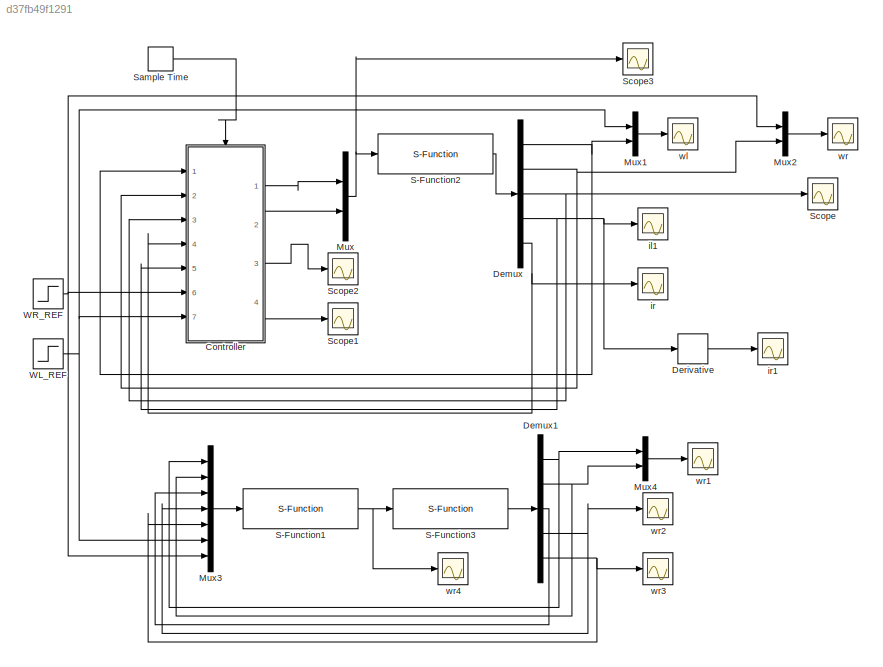
MODEL slx_d37fb49f1291
KIND model
CONFIG AbsTol = auto
CONFIG FixedStep = auto
CONFIG MaxStep = auto
CONFIG MinStep = auto
CONFIG RelTol = 1e-3
CONFIG SampleTimeConstraint = Unconstrained
CONFIG Solver = ode3
CONFIG SolverMode = Auto
CONFIG SolverName = ode3
CONFIG StartTime = 0.0
CONFIG StopTime = 50
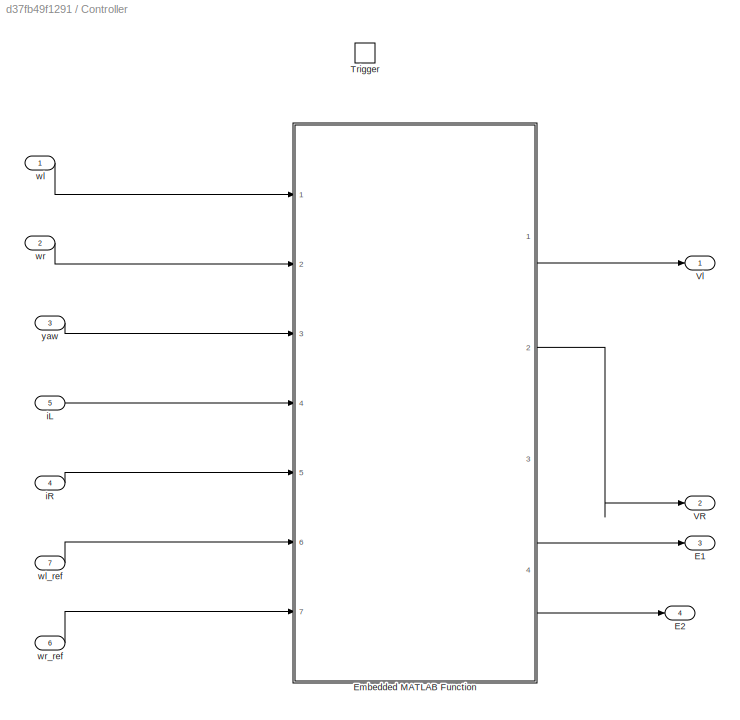
BLOCK [SubSystem] Controller
  Ports = [7, 4, 0, 1]
  RequestExecContextInheritance = off
  Variant = off
BLOCK [Outport] Controller/E1
  IconDisplay = Port number
  Port = 3
BLOCK [Outport] Controller/E2
  IconDisplay = Port number
  Port = 4
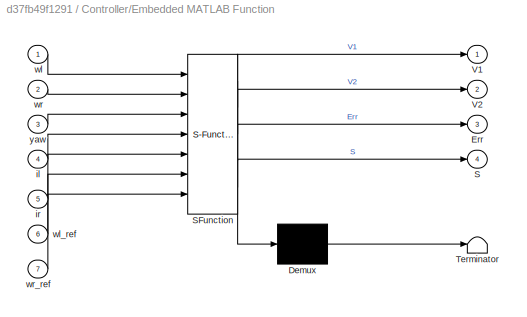
BLOCK [SubSystem] Controller/Embedded MATLAB Function
  ErrorFcn = Stateflow.Translate.translate
  PermitHierarchicalResolution = ParametersOnly
  Ports = [7, 4]
  RequestExecContextInheritance = off
  SFBlockType = MATLAB Function
  TreatAsAtomicUnit = on
  Variant = off
BLOCK [Demux] Controller/Embedded MATLAB Function/ Demux 
  Outputs = 1
  Ports = [1, 1]
BLOCK [S-Function] Controller/Embedded MATLAB Function/ SFunction 
  EnableBusSupport = on
  FunctionName = sf_sfun
  PortCounts = [7 5]
  Ports = [7, 5]
  SFunctionDeploymentMode = off
  Tag = Stateflow S-Function skid_steer_model 2
BLOCK [Terminator] Controller/Embedded MATLAB Function/ Terminator 
BLOCK [Outport] Controller/Embedded MATLAB Function/Err
  IconDisplay = Port number
  Port = 3
BLOCK [Outport] Controller/Embedded MATLAB Function/S
  IconDisplay = Port number
  Port = 4
BLOCK [Outport] Controller/Embedded MATLAB Function/V1
  IconDisplay = Port number
BLOCK [Outport] Controller/Embedded MATLAB Function/V2
  IconDisplay = Port number
  Port = 2
BLOCK [Inport] Controller/Embedded MATLAB Function/il
  IconDisplay = Port number
  Port = 4
BLOCK [Inport] Controller/Embedded MATLAB Function/ir
  IconDisplay = Port number
  Port = 5
BLOCK [Inport] Controller/Embedded MATLAB Function/wl
  IconDisplay = Port number
BLOCK [Inport] Controller/Embedded MATLAB Function/wl_ref
  IconDisplay = Port number
  Port = 6
BLOCK [Inport] Controller/Embedded MATLAB Function/wr
  IconDisplay = Port number
  Port = 2
BLOCK [Inport] Controller/Embedded MATLAB Function/wr_ref
  IconDisplay = Port number
  Port = 7
BLOCK [Inport] Controller/Embedded MATLAB Function/yaw
  IconDisplay = Port number
  Port = 3
BLOCK [TriggerPort] Controller/Trigger
  Ports = []
  StatesWhenEnabling = held
BLOCK [Outport] Controller/VR
  IconDisplay = Port number
  Port = 2
BLOCK [Outport] Controller/Vl
  IconDisplay = Port number
BLOCK [Inport] Controller/iL
  IconDisplay = Port number
  Port = 5
BLOCK [Inport] Controller/iR
  IconDisplay = Port number
  Port = 4
BLOCK [Inport] Controller/wl
  IconDisplay = Port number
BLOCK [Inport] Controller/wl_ref
  IconDisplay = Port number
  Port = 7
BLOCK [Inport] Controller/wr
  IconDisplay = Port number
  Port = 2
BLOCK [Inport] Controller/wr_ref
  IconDisplay = Port number
  Port = 6
BLOCK [Inport] Controller/yaw
  IconDisplay = Port number
  Port = 3
BLOCK [Demux] Demux
  DisplayOption = bar
  Outputs = 5
  Ports = [1, 5]
BLOCK [Demux] Demux1
  DisplayOption = bar
  Outputs = 5
  Ports = [1, 5]
BLOCK [Derivative] Derivative
BLOCK [Mux] Mux
  DisplayOption = bar
  Inputs = 2
  Ports = [2, 1]
BLOCK [Mux] Mux1
  DisplayOption = bar
  Inputs = 2
  Ports = [2, 1]
BLOCK [Mux] Mux2
  DisplayOption = bar
  Inputs = 2
  Ports = [2, 1]
BLOCK [Mux] Mux3
  DisplayOption = bar
  Inputs = 7
  Ports = [7, 1]
BLOCK [Mux] Mux4
  DisplayOption = bar
  Inputs = 2
  Ports = [2, 1]
BLOCK [S-Function] S-Function1
  EnableBusSupport = off
  FunctionName = S_Rover_control
  Ports = [1, 1]
  SFunctionDeploymentMode = off
BLOCK [S-Function] S-Function2
  EnableBusSupport = off
  FunctionName = S_Rover_skid_steer
  Ports = [1, 1]
  SFunctionDeploymentMode = off
BLOCK [S-Function] S-Function3
  EnableBusSupport = off
  FunctionName = S_Rover_skid_steer
  Ports = [1, 1]
  SFunctionDeploymentMode = off
BLOCK [DiscretePulseGenerator] Sample Time
  Period = Ts
  Ports = [0, 1]
  PulseType = Time based
  PulseWidth = 10
  SampleTime = 1e-3
BLOCK [Scope] Scope
  DataFormat = StructureWithTime
  Decimation = 1
  Grid = on
  LimitDataPoints = off
  MaxDataPoints = 5000
  Ports = [1]
  SampleInput = off
  SampleTime = -1
  SaveName = ScopeData
  SaveToWorkspace = off
  ShowLegends = off
  TickLabels = OneTimeTick
  TimeRange = auto
  YMax = 5.54233
  YMin = -0.61679
  ZoomMode = on
BLOCK [Scope] Scope1
  DataFormat = StructureWithTime
  Decimation = 1
  Grid = on
  LimitDataPoints = off
  MaxDataPoints = 5000
  Ports = [1]
  SampleInput = off
  SampleTime = -1
  SaveName = ScopeData4
  SaveToWorkspace = off
  ShowLegends = off
  TickLabels = OneTimeTick
  TimeRange = auto
  YMax = 1.25
  YMin = -1.25
  ZoomMode = on
BLOCK [Scope] Scope2
  DataFormat = StructureWithTime
  Decimation = 1
  Grid = on
  LimitDataPoints = off
  MaxDataPoints = 5000
  Ports = [1]
  SampleInput = off
  SampleTime = -1
  SaveName = ScopeData8
  SaveToWorkspace = off
  ShowLegends = off
  TickLabels = OneTimeTick
  TimeRange = auto
  YMax = 8.70895
  YMin = -3.84725
  ZoomMode = on
BLOCK [Scope] Scope3
  DataFormat = StructureWithTime
  Decimation = 1
  Grid = on
  LimitDataPoints = off
  MaxDataPoints = 5000
  Ports = [1]
  SampleInput = off
  SampleTime = -1
  SaveName = ScopeData3
  SaveToWorkspace = off
  ShowLegends = off
  TickLabels = OneTimeTick
  TimeRange = auto
  YMax = 124.96766
  YMin = -124.70891
  ZoomMode = on
BLOCK [Step] WL_REF
  After = 0.5
  Before = 1
  SampleTime = 0
  Time = 5
BLOCK [Step] WR_REF
  After = 1.5
  Before = 1
  SampleTime = 0
  Time = 30
BLOCK [Scope] il1
  DataFormat = StructureWithTime
  Decimation = 1
  Grid = on
  LimitDataPoints = off
  MaxDataPoints = 5000
  Ports = [1]
  SampleInput = off
  SampleTime = -1
  SaveName = ScopeData5
  SaveToWorkspace = off
  ShowLegends = off
  TickLabels = OneTimeTick
  TimeRange = auto
  YMax = 23.2116
  YMin = -6.35578
  ZoomMode = on
BLOCK [Scope] ir
  DataFormat = StructureWithTime
  Decimation = 1
  Grid = on
  LimitDataPoints = off
  MaxDataPoints = 5000
  Ports = [1]
  SampleInput = off
  SampleTime = -1
  SaveName = ScopeData6
  SaveToWorkspace = off
  ShowLegends = off
  TickLabels = OneTimeTick
  TimeRange = auto
  YMax = 37.14237
  YMin = -6.8481
  ZoomMode = on
BLOCK [Scope] ir1
  DataFormat = StructureWithTime
  Decimation = 1
  Grid = on
  LimitDataPoints = off
  MaxDataPoints = 5000
  Ports = [1]
  SampleInput = off
  SampleTime = -1
  SaveName = ScopeData7
  SaveToWorkspace = off
  ShowLegends = off
  TickLabels = OneTimeTick
  TimeRange = auto
  YMax = 41.49955
  YMin = -34.07938
  ZoomMode = on
BLOCK [Scope] wl
  DataFormat = StructureWithTime
  Decimation = 1
  Grid = on
  LimitDataPoints = off
  MaxDataPoints = 5000
  Ports = [1]
  SampleInput = off
  SampleTime = -1
  SaveName = ScopeData1
  SaveToWorkspace = off
  ShowLegends = off
  TickLabels = OneTimeTick
  TimeRange = auto
  YMax = 1.63682
  YMin = -0.20599
  ZoomMode = on
BLOCK [Scope] wr
  DataFormat = StructureWithTime
  Decimation = 1
  Grid = on
  LimitDataPoints = off
  MaxDataPoints = 5000
  Ports = [1]
  SampleInput = off
  SampleTime = -1
  SaveName = ScopeData2
  SaveToWorkspace = off
  ShowLegends = off
  TickLabels = OneTimeTick
  TimeRange = auto
  YMax = 1.89419
  YMin = -0.271
  ZoomMode = on
BLOCK [Scope] wr1
  DataFormat = StructureWithTime
  Decimation = 1
  Grid = on
  LimitDataPoints = off
  MaxDataPoints = 5000
  Ports = [1]
  SampleInput = off
  SampleTime = -1
  SaveName = ScopeData9
  SaveToWorkspace = off
  ShowLegends = off
  TickLabels = OneTimeTick
  TimeRange = auto
  YMax = 1.77331
  YMin = -0.25547
  ZoomMode = on
BLOCK [Scope] wr2
  DataFormat = StructureWithTime
  Decimation = 1
  Grid = on
  LimitDataPoints = off
  MaxDataPoints = 5000
  Ports = [1]
  SampleInput = off
  SampleTime = -1
  SaveName = ScopeData10
  SaveToWorkspace = off
  ShowLegends = off
  TickLabels = OneTimeTick
  TimeRange = auto
  YMax = 19.47524
  YMin = -45.38843
  ZoomMode = on
BLOCK [Scope] wr3
  DataFormat = StructureWithTime
  Decimation = 1
  Grid = on
  LimitDataPoints = off
  MaxDataPoints = 5000
  Ports = [1]
  SampleInput = off
  SampleTime = -1
  SaveName = ScopeData11
  SaveToWorkspace = off
  ShowLegends = off
  TickLabels = OneTimeTick
  TimeRange = auto
  YMax = 38.5341
  YMin = -15.77008
  ZoomMode = on
BLOCK [Scope] wr4
  DataFormat = StructureWithTime
  Decimation = 1
  Grid = on
  LimitDataPoints = off
  MaxDataPoints = 5000
  Ports = [1]
  SampleInput = off
  SampleTime = -1
  SaveName = ScopeData12
  SaveToWorkspace = off
  ShowLegends = off
  TickLabels = OneTimeTick
  TimeRange = auto
  YMax = 125.00000
  YMin = -125.00000
  ZoomMode = on
LINE Controller/Embedded MATLAB Function:1 -> Controller/Vl:1
LINE Controller/Embedded MATLAB Function:2 -> Controller/VR:1
LINE Controller/Embedded MATLAB Function:3 -> Controller/E1:1
LINE Controller/Embedded MATLAB Function:4 -> Controller/E2:1
LINE Controller/iL:1 -> Controller/Embedded MATLAB Function:4
LINE Controller/iR:1 -> Controller/Embedded MATLAB Function:5
LINE Controller/wl:1 -> Controller/Embedded MATLAB Function:1
LINE Controller/wl_ref:1 -> Controller/Embedded MATLAB Function:6
LINE Controller/wr:1 -> Controller/Embedded MATLAB Function:2
LINE Controller/wr_ref:1 -> Controller/Embedded MATLAB Function:7
LINE Controller/yaw:1 -> Controller/Embedded MATLAB Function:3
LINE Controller:1 -> Mux:1
LINE Controller:2 -> Mux:2
LINE Controller:3 -> Scope2:1
LINE Controller:4 -> Scope1:1
NET Demux1:1 -> Mux3:1, Mux4:1
NET Demux1:2 -> Mux3:2, Mux4:2
LINE Demux1:3 -> Mux3:3
NET Demux1:4 -> Mux3:4, wr2:1
NET Demux1:5 -> Mux3:5, wr3:1
NET Demux:1 -> Controller:1, Mux1:2
NET Demux:2 -> Controller:2, Mux2:2
NET Demux:3 -> Controller:3, Scope:1
NET Demux:4 -> Controller:5, Derivative:1, il1:1
NET Demux:5 -> Controller:4, ir:1
LINE Derivative:1 -> ir1:1
LINE Mux1:1 -> wl:1
LINE Mux2:1 -> wr:1
LINE Mux3:1 -> S-Function1:1
LINE Mux4:1 -> wr1:1
NET Mux:1 -> S-Function2:1, Scope3:1
NET S-Function1:1 -> S-Function3:1, wr4:1
LINE S-Function2:1 -> Demux:1
LINE S-Function3:1 -> Demux1:1
LINE Sample Time:1 -> Controller:trigger
NET WL_REF:1 -> Controller:7, Mux1:1, Mux3:6
NET WR_REF:1 -> Controller:6, Mux2:1, Mux3:7
note: NET lines group one-source signal fan-out (src -> all destinations, sorted); 1:1 wires keep LINE
CHART Controller/Embedded
MATLAB Function states=1 transitions=1
  STATE_LABEL 'eML_blk_kernel()'
  STATE_LABEL 'SCRIPT:\nfunction [V1,V2,Err,S]  = fcn(wl,wr,yaw,il,ir,wl_ref,wr_ref)\n\nref_wl=wl_ref;\nref_wr=wr_ref;\nref_il=-40;\nref_ir=-40;\nref_theta=pi;\n\nTs=60e-3;\n\nKp=2.7;\nTi=.6;\nTd=0.15*0;\n\npersistent Ui_1_wl Ui_1_wr error_1_wl error_1_wr U_wr_1 U_wl_1 il_1 ir_1 wl_1 wr_1 wr_ref_1 wl_ref_1 il_ref_1;\n\nif isempty(il_ref_1); il_ref_1=0;   end;\nif isempty(wl_ref_1); wl_ref_1=0;   end;\nif isempty(wr_ref_1); wr_ref_...<+3608ch>'
